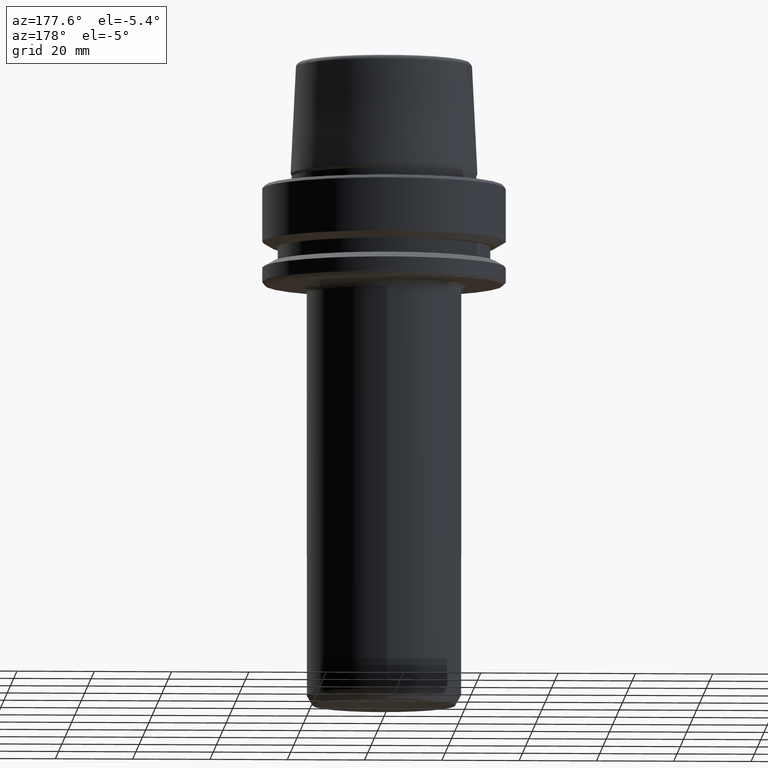
[diagram: clean part render]
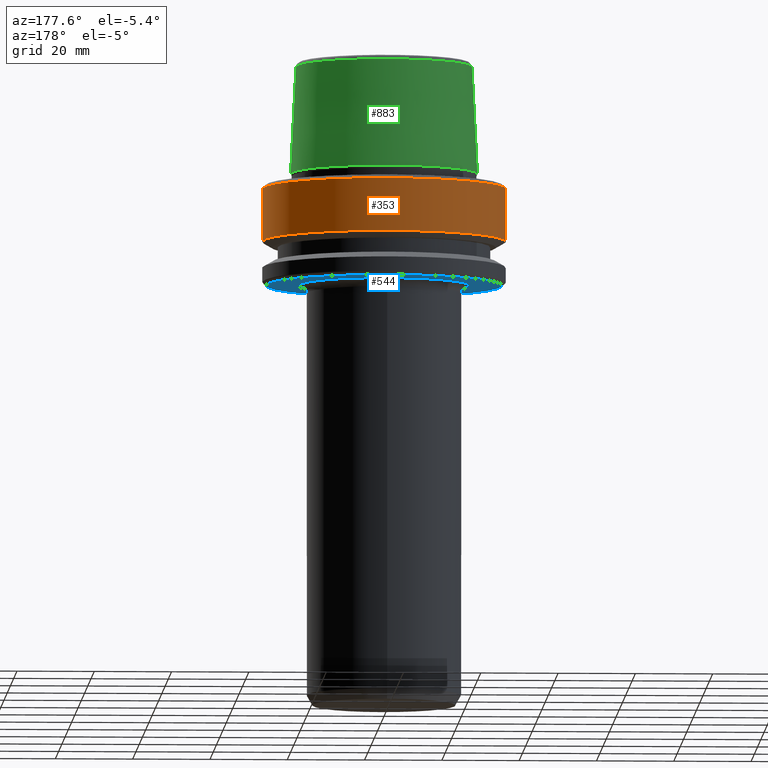
[diagram: same view with three faces highlighted in distinct colors, each labeled with its STEP entity id]
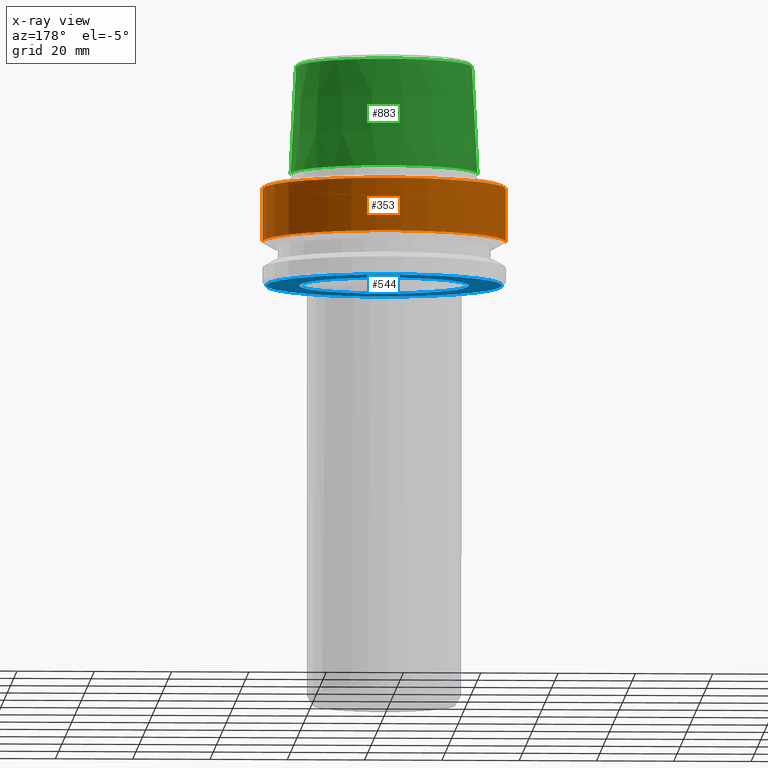
[diagram: x-ray of the same camera — body ghosted, the three highlighted faces saturated]
A machine part, auxiliary view with three faces highlighted in distinct colors.
The next image is the same camera in x-ray (body ghosted, the three faces saturated) — at least one of them is partly hidden behind the body in this view.
Their STEP definitions:

[orange] entity #353 — the highlighted cylindrical surface (partial cylindrical patch) has radius 31.5 mm, axis along (-0, -0, 1).
#5 = ORIENTED_EDGE ( 'NONE', *, *, #517, .F. ) ;
#14 = DIRECTION ( 'NONE',  ( 1.000000000000000000, 0.0000000000000000000, 0.0000000000000000000 ) ) ;
#104 = DIRECTION ( 'NONE',  ( -0.0000000000000000000, -0.0000000000000000000, 1.000000000000000000 ) ) ;
#119 = CARTESIAN_POINT ( 'NONE',  ( 31.50000000000000700, 0.0000000000000000000, -0.9656854249492363700 ) ) ;
#152 = EDGE_CURVE ( 'NONE', #604, #1068, #892, .T. ) ;
#289 = CARTESIAN_POINT ( 'NONE',  ( 31.50000000000000000, 0.0000000000000000000, 78.96908074195309300 ) ) ;
#313 = CYLINDRICAL_SURFACE ( 'NONE', #1232, 31.50000000000000000 ) ;
#353 = ADVANCED_FACE ( 'NONE', ( #532 ), #313, .T. ) ;
#361 = DIRECTION ( 'NONE',  ( 1.000000000000000000, 0.0000000000000000000, 0.0000000000000000000 ) ) ;
#406 = CARTESIAN_POINT ( 'NONE',  ( -31.50000000000000000, 3.857637417314162700E-015, 78.96908074195309300 ) ) ;
#438 = CARTESIAN_POINT ( 'NONE',  ( 0.0000000000000000000, 0.0000000000000000000, -0.9656854249492363700 ) ) ;
#472 = DIRECTION ( 'NONE',  ( -0.0000000000000000000, -0.0000000000000000000, 1.000000000000000000 ) ) ;
#503 = VECTOR ( 'NONE', #104, 1000.000000000000000 ) ;
#517 = EDGE_CURVE ( 'NONE', #1068, #682, #731, .T. ) ;
#532 = FACE_OUTER_BOUND ( 'NONE', #865, .T. ) ;
#567 = VERTEX_POINT ( 'NONE', #829 ) ;
#604 = VERTEX_POINT ( 'NONE', #781 ) ;
#612 = ORIENTED_EDGE ( 'NONE', *, *, #152, .F. ) ;
#643 = EDGE_CURVE ( 'NONE', #567, #682, #1264, .T. ) ;
#650 = CARTESIAN_POINT ( 'NONE',  ( 0.0000000000000000000, 0.0000000000000000000, -14.62250092524070100 ) ) ;
#681 = CARTESIAN_POINT ( 'NONE',  ( -31.50000000000000700, 3.857637417314163500E-015, -0.9656854249492363700 ) ) ;
#682 = VERTEX_POINT ( 'NONE', #681 ) ;
#699 = DIRECTION ( 'NONE',  ( 1.000000000000000000, 0.0000000000000000000, 0.0000000000000000000 ) ) ;
#731 = CIRCLE ( 'NONE', #1046, 31.50000000000000700 ) ;
#736 = ORIENTED_EDGE ( 'NONE', *, *, #643, .T. ) ;
#781 = CARTESIAN_POINT ( 'NONE',  ( 31.50000000000000000, 0.0000000000000000000, -14.62250092524070100 ) ) ;
#829 = CARTESIAN_POINT ( 'NONE',  ( -31.50000000000000000, 3.857637417314162700E-015, -14.62250092524070100 ) ) ;
#863 = DIRECTION ( 'NONE',  ( -0.0000000000000000000, -0.0000000000000000000, 1.000000000000000000 ) ) ;
#865 = EDGE_LOOP ( 'NONE', ( #1212, #736, #5, #612 ) ) ;
#874 = CARTESIAN_POINT ( 'NONE',  ( 0.0000000000000000000, 0.0000000000000000000, 78.96908074195309300 ) ) ;
#892 = LINE ( 'NONE', #289, #909 ) ;
#909 = VECTOR ( 'NONE', #863, 1000.000000000000000 ) ;
#1012 = AXIS2_PLACEMENT_3D ( 'NONE', #650, #472, #14 ) ;
#1046 = AXIS2_PLACEMENT_3D ( 'NONE', #438, #1070, #361 ) ;
#1068 = VERTEX_POINT ( 'NONE', #119 ) ;
#1070 = DIRECTION ( 'NONE',  ( -0.0000000000000000000, -0.0000000000000000000, 1.000000000000000000 ) ) ;
#1107 = DIRECTION ( 'NONE',  ( -0.0000000000000000000, -0.0000000000000000000, 1.000000000000000000 ) ) ;
#1163 = CIRCLE ( 'NONE', #1012, 31.50000000000000000 ) ;
#1166 = EDGE_CURVE ( 'NONE', #604, #567, #1163, .T. ) ;
#1212 = ORIENTED_EDGE ( 'NONE', *, *, #1166, .T. ) ;
#1232 = AXIS2_PLACEMENT_3D ( 'NONE', #874, #1107, #699 ) ;
#1264 = LINE ( 'NONE', #406, #503 ) ;

[blue] entity #544 — the highlighted planar face has unit normal (0, -0, 1).
#85 = AXIS2_PLACEMENT_3D ( 'NONE', #158, #843, #258 ) ;
#88 = AXIS2_PLACEMENT_3D ( 'NONE', #553, #434, #469 ) ;
#111 = ORIENTED_EDGE ( 'NONE', *, *, #1246, .F. ) ;
#127 = CARTESIAN_POINT ( 'NONE',  ( 30.53431457505076500, 0.0000000000000000000, -26.00000000000001100 ) ) ;
#158 = CARTESIAN_POINT ( 'NONE',  ( 0.0000000000000000000, 4.494116694118690500E-017, -26.00000000000000700 ) ) ;
#163 = ORIENTED_EDGE ( 'NONE', *, *, #894, .F. ) ;
#258 = DIRECTION ( 'NONE',  ( 1.000000000000000000, 0.0000000000000000000, 0.0000000000000000000 ) ) ;
#270 = CIRCLE ( 'NONE', #450, 22.00000000000000000 ) ;
#303 = CARTESIAN_POINT ( 'NONE',  ( 0.0000000000000000000, 0.0000000000000000000, -26.00000000000001100 ) ) ;
#378 = FACE_BOUND ( 'NONE', #1027, .T. ) ;
#403 = CARTESIAN_POINT ( 'NONE',  ( 0.0000000000000000000, 30.53431457505076500, -26.00000000000000700 ) ) ;
#416 = EDGE_CURVE ( 'NONE', #918, #952, #270, .T. ) ;
#426 = CARTESIAN_POINT ( 'NONE',  ( 22.00000000000000000, 4.494116694118690500E-017, -26.00000000000000400 ) ) ;
#434 = DIRECTION ( 'NONE',  ( -0.0000000000000000000, -0.0000000000000000000, 1.000000000000000000 ) ) ;
#444 = EDGE_LOOP ( 'NONE', ( #111, #163 ) ) ;
#450 = AXIS2_PLACEMENT_3D ( 'NONE', #1268, #805, #868 ) ;
#469 = DIRECTION ( 'NONE',  ( 1.000000000000000000, 0.0000000000000000000, 0.0000000000000000000 ) ) ;
#498 = DIRECTION ( 'NONE',  ( 1.000000000000000000, 0.0000000000000000000, 0.0000000000000000000 ) ) ;
#506 = CARTESIAN_POINT ( 'NONE',  ( -30.53431457505076500, 3.756694181974138600E-015, -26.00000000000001100 ) ) ;
#527 = ORIENTED_EDGE ( 'NONE', *, *, #866, .T. ) ;
#544 = ADVANCED_FACE ( 'NONE', ( #378, #1183 ), #912, .F. ) ;
#545 = ORIENTED_EDGE ( 'NONE', *, *, #416, .T. ) ;
#553 = CARTESIAN_POINT ( 'NONE',  ( 0.0000000000000000000, 0.0000000000000000000, -26.00000000000001100 ) ) ;
#599 = AXIS2_PLACEMENT_3D ( 'NONE', #303, #693, #498 ) ;
#607 = CIRCLE ( 'NONE', #599, 30.53431457505076500 ) ;
#693 = DIRECTION ( 'NONE',  ( -0.0000000000000000000, -0.0000000000000000000, 1.000000000000000000 ) ) ;
#730 = DIRECTION ( 'NONE',  ( 1.000000000000000000, 0.0000000000000000000, 0.0000000000000000000 ) ) ;
#805 = DIRECTION ( 'NONE',  ( -0.0000000000000000000, -0.0000000000000000000, 1.000000000000000000 ) ) ;
#812 = VERTEX_POINT ( 'NONE', #127 ) ;
#843 = DIRECTION ( 'NONE',  ( -0.0000000000000000000, -0.0000000000000000000, 1.000000000000000000 ) ) ;
#866 = EDGE_CURVE ( 'NONE', #952, #918, #1164, .T. ) ;
#868 = DIRECTION ( 'NONE',  ( 1.000000000000000000, 0.0000000000000000000, 0.0000000000000000000 ) ) ;
#894 = EDGE_CURVE ( 'NONE', #1100, #812, #1228, .T. ) ;
#902 = CARTESIAN_POINT ( 'NONE',  ( -22.00000000000000000, 2.739164125065363600E-015, -26.00000000000000400 ) ) ;
#912 = PLANE ( 'NONE',  #970 ) ;
#918 = VERTEX_POINT ( 'NONE', #426 ) ;
#952 = VERTEX_POINT ( 'NONE', #902 ) ;
#970 = AXIS2_PLACEMENT_3D ( 'NONE', #403, #1120, #730 ) ;
#1027 = EDGE_LOOP ( 'NONE', ( #545, #527 ) ) ;
#1100 = VERTEX_POINT ( 'NONE', #506 ) ;
#1120 = DIRECTION ( 'NONE',  ( 0.0000000000000000000, -0.0000000000000000000, 1.000000000000000000 ) ) ;
#1164 = CIRCLE ( 'NONE', #85, 22.00000000000000000 ) ;
#1183 = FACE_OUTER_BOUND ( 'NONE', #444, .T. ) ;
#1228 = CIRCLE ( 'NONE', #88, 30.53431457505076500 ) ;
#1246 = EDGE_CURVE ( 'NONE', #812, #1100, #607, .T. ) ;
#1268 = CARTESIAN_POINT ( 'NONE',  ( 0.0000000000000000000, 4.494116694118690500E-017, -26.00000000000000700 ) ) ;

[green] entity #883 — the highlighted conical surface has half-angle 2.868 deg.
#8 = ORIENTED_EDGE ( 'NONE', *, *, #565, .T. ) ;
#10 = CONICAL_SURFACE ( 'NONE', #72, 24.17032625081241900, 0.05005701257456005000 ) ;
#43 = VERTEX_POINT ( 'NONE', #223 ) ;
#70 = AXIS2_PLACEMENT_3D ( 'NONE', #239, #1144, #559 ) ;
#72 = AXIS2_PLACEMENT_3D ( 'NONE', #735, #834, #299 ) ;
#177 = CARTESIAN_POINT ( 'NONE',  ( 24.17032625081241900, 2.960011267740467600E-015, 3.000000000000002700 ) ) ;
#214 = CARTESIAN_POINT ( 'NONE',  ( 22.77957961851797100, 2.874852597157249900E-015, 30.76004333261571900 ) ) ;
#223 = CARTESIAN_POINT ( 'NONE',  ( -24.17032625081241900, 2.960011267740467600E-015, 3.000000000000002700 ) ) ;
#239 = CARTESIAN_POINT ( 'NONE',  ( 0.0000000000000000000, 0.0000000000000000000, 3.000000000000002700 ) ) ;
#254 = DIRECTION ( 'NONE',  ( 0.05003611051310812000, 6.127656258166108900E-018, -0.9987474093306675200 ) ) ;
#280 = FACE_OUTER_BOUND ( 'NONE', #1059, .T. ) ;
#299 = DIRECTION ( 'NONE',  ( -1.000000000000000000, 0.0000000000000000000, 0.0000000000000000000 ) ) ;
#336 = VERTEX_POINT ( 'NONE', #1008 ) ;
#355 = ORIENTED_EDGE ( 'NONE', *, *, #561, .F. ) ;
#371 = VERTEX_POINT ( 'NONE', #461 ) ;
#461 = CARTESIAN_POINT ( 'NONE',  ( 24.17032625081241900, 0.0000000000000000000, 3.000000000000002700 ) ) ;
#462 = LINE ( 'NONE', #177, #861 ) ;
#543 = LINE ( 'NONE', #1134, #627 ) ;
#559 = DIRECTION ( 'NONE',  ( 1.000000000000000000, 0.0000000000000000000, 0.0000000000000000000 ) ) ;
#561 = EDGE_CURVE ( 'NONE', #336, #43, #543, .T. ) ;
#565 = EDGE_CURVE ( 'NONE', #1081, #371, #462, .T. ) ;
#566 = CARTESIAN_POINT ( 'NONE',  ( 0.0000000000000000000, 0.0000000000000000000, 30.76004333261571900 ) ) ;
#618 = EDGE_CURVE ( 'NONE', #1081, #336, #1095, .T. ) ;
#627 = VECTOR ( 'NONE', #943, 1000.000000000000200 ) ;
#685 = ORIENTED_EDGE ( 'NONE', *, *, #958, .T. ) ;
#702 = DIRECTION ( 'NONE',  ( -0.0000000000000000000, -0.0000000000000000000, 1.000000000000000000 ) ) ;
#735 = CARTESIAN_POINT ( 'NONE',  ( 0.0000000000000000000, 0.0000000000000000000, 3.000000000000002700 ) ) ;
#806 = AXIS2_PLACEMENT_3D ( 'NONE', #566, #702, #1014 ) ;
#834 = DIRECTION ( 'NONE',  ( 0.0000000000000000000, 0.0000000000000000000, -1.000000000000000000 ) ) ;
#861 = VECTOR ( 'NONE', #254, 1000.000000000000200 ) ;
#883 = ADVANCED_FACE ( 'NONE', ( #280 ), #10, .T. ) ;
#900 = ORIENTED_EDGE ( 'NONE', *, *, #618, .F. ) ;
#943 = DIRECTION ( 'NONE',  ( -0.05003611051310812000, 0.0000000000000000000, -0.9987474093306675200 ) ) ;
#958 = EDGE_CURVE ( 'NONE', #371, #43, #1192, .T. ) ;
#1008 = CARTESIAN_POINT ( 'NONE',  ( -22.77957961851797100, 0.0000000000000000000, 30.76004333261571900 ) ) ;
#1014 = DIRECTION ( 'NONE',  ( 1.000000000000000000, 0.0000000000000000000, 0.0000000000000000000 ) ) ;
#1059 = EDGE_LOOP ( 'NONE', ( #900, #8, #685, #355 ) ) ;
#1081 = VERTEX_POINT ( 'NONE', #214 ) ;
#1095 = CIRCLE ( 'NONE', #806, 22.77957961851797100 ) ;
#1134 = CARTESIAN_POINT ( 'NONE',  ( -24.17032625081241900, 0.0000000000000000000, 3.000000000000002700 ) ) ;
#1144 = DIRECTION ( 'NONE',  ( -0.0000000000000000000, -0.0000000000000000000, 1.000000000000000000 ) ) ;
#1192 = CIRCLE ( 'NONE', #70, 24.17032625081241900 ) ;